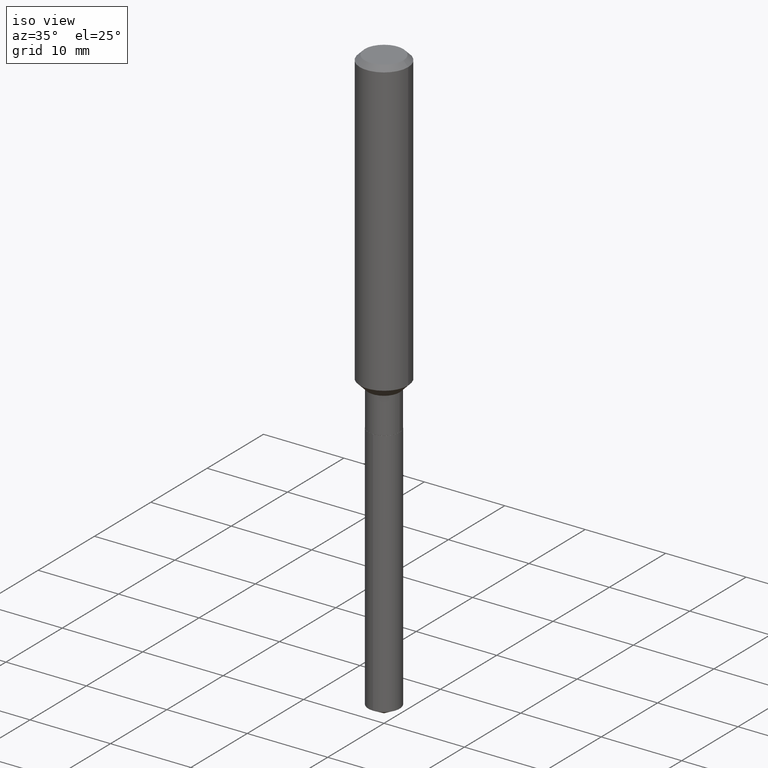
[diagram: clean part render]
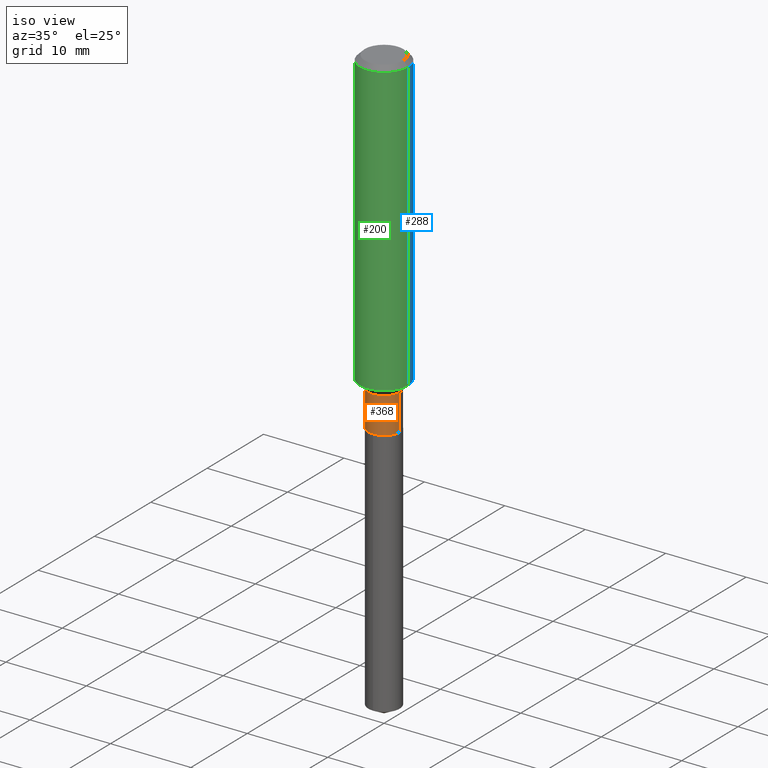
[diagram: same view with three faces highlighted in distinct colors, each labeled with its STEP entity id]
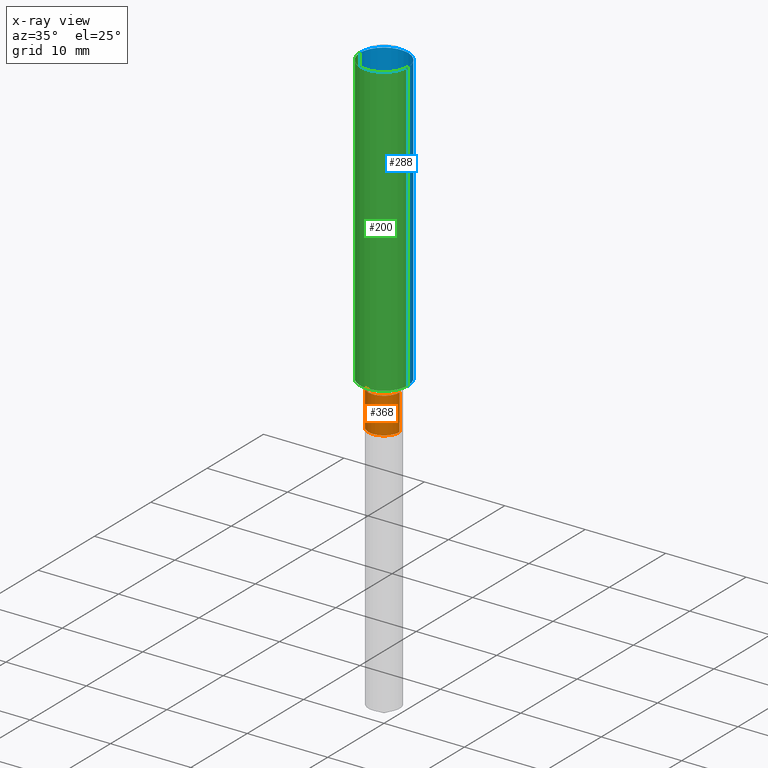
[diagram: x-ray of the same camera — body ghosted, the three highlighted faces saturated]
A machine part, iso view with three faces highlighted in distinct colors.
The next image is the same camera in x-ray (body ghosted, the three faces saturated) — at least one of them is partly hidden behind the body in this view.
Their STEP definitions:

[orange] entity #368 — the highlighted cylindrical surface (edge-blend (fillet) strip) has radius 1.9494 mm, axis along (-0, 0, 1).
#8 = CIRCLE ( 'NONE', #290, 0.07675000000000001266 ) ;
#12 = CARTESIAN_POINT ( 'NONE',  ( -0.07675000000000001266, -4.905209968372158594E-15, -1.649100000000000232 ) ) ;
#15 = ORIENTED_EDGE ( 'NONE', *, *, #80, .T. ) ;
#18 = VECTOR ( 'NONE', #226, 39.37007874015748143 ) ;
#30 = CARTESIAN_POINT ( 'NONE',  ( -0.07674999999999999878, 5.453415496958768840E-16, -3.775282681770640332E-30 ) ) ;
#35 = ORIENTED_EDGE ( 'NONE', *, *, #133, .F. ) ;
#50 = DIRECTION ( 'NONE',  ( -2.445468806185136597E-29, 3.491481338843145583E-15, 1.000000000000000000 ) ) ;
#62 = DIRECTION ( 'NONE',  ( 1.000000000000000000, -6.982962677686265922E-15, 4.876176775795935793E-29 ) ) ;
#74 = DIRECTION ( 'NONE',  ( -2.445468806185136877E-29, 3.491481338843145188E-15, 1.000000000000000000 ) ) ;
#80 = EDGE_CURVE ( 'NONE', #367, #420, #306, .T. ) ;
#100 = FACE_OUTER_BOUND ( 'NONE', #104, .T. ) ;
#104 = EDGE_LOOP ( 'NONE', ( #286, #143, #15, #35 ) ) ;
#115 = CARTESIAN_POINT ( 'NONE',  ( 0.07674999999999999878, -5.359423855124209227E-16, 3.742465675423380805E-30 ) ) ;
#130 = VECTOR ( 'NONE', #74, 39.37007874015748143 ) ;
#133 = EDGE_CURVE ( 'NONE', #350, #420, #243, .T. ) ;
#143 = ORIENTED_EDGE ( 'NONE', *, *, #187, .T. ) ;
#144 = CARTESIAN_POINT ( 'NONE',  ( 0.07675000000000001266, -6.293744261398653157E-15, -1.649100000000000232 ) ) ;
#155 = AXIS2_PLACEMENT_3D ( 'NONE', #322, #248, #246 ) ;
#157 = CARTESIAN_POINT ( 'NONE',  ( 0.07674999999999998490, -5.679243545762258658E-15, -1.473100000000000298 ) ) ;
#187 = EDGE_CURVE ( 'NONE', #225, #367, #8, .T. ) ;
#225 = VERTEX_POINT ( 'NONE', #12 ) ;
#226 = DIRECTION ( 'NONE',  ( -2.445468806185136877E-29, 3.491481338843145188E-15, 1.000000000000000000 ) ) ;
#243 = CIRCLE ( 'NONE', #155, 0.07674999999999998490 ) ;
#245 = EDGE_CURVE ( 'NONE', #225, #350, #266, .T. ) ;
#246 = DIRECTION ( 'NONE',  ( 1.000000000000000000, -6.982962677686261189E-15, 0.000000000000000000 ) ) ;
#248 = DIRECTION ( 'NONE',  ( -2.445468806185136597E-29, 3.491481338843145583E-15, 1.000000000000000000 ) ) ;
#261 = CYLINDRICAL_SURFACE ( 'NONE', #376, 0.07674999999999999878 ) ;
#266 = LINE ( 'NONE', #30, #18 ) ;
#286 = ORIENTED_EDGE ( 'NONE', *, *, #245, .F. ) ;
#290 = AXIS2_PLACEMENT_3D ( 'NONE', #362, #50, #473 ) ;
#292 = DIRECTION ( 'NONE',  ( -2.445468806185136597E-29, 3.491481338843145583E-15, 1.000000000000000000 ) ) ;
#306 = LINE ( 'NONE', #115, #130 ) ;
#322 = CARTESIAN_POINT ( 'NONE',  ( 3.602420098391325292E-29, -5.143301160249838129E-15, -1.473100000000000298 ) ) ;
#331 = CARTESIAN_POINT ( 'NONE',  ( -0.07674999999999998490, -4.905209968372158594E-15, -1.473100000000000298 ) ) ;
#350 = VERTEX_POINT ( 'NONE', #331 ) ;
#362 = CARTESIAN_POINT ( 'NONE',  ( 4.032822608279909015E-29, -5.757801875886231840E-15, -1.649100000000000232 ) ) ;
#367 = VERTEX_POINT ( 'NONE', #144 ) ;
#368 = ADVANCED_FACE ( 'NONE', ( #100 ), #261, .T. ) ;
#376 = AXIS2_PLACEMENT_3D ( 'NONE', #411, #292, #62 ) ;
#411 = CARTESIAN_POINT ( 'NONE',  ( 0.000000000000000000, 0.000000000000000000, 0.000000000000000000 ) ) ;
#420 = VERTEX_POINT ( 'NONE', #157 ) ;
#473 = DIRECTION ( 'NONE',  ( 1.000000000000000000, -6.982962677686271444E-15, 0.000000000000000000 ) ) ;

[blue] entity #288 — the highlighted cylindrical surface (edge-blend (fillet) strip) has radius 2.9997 mm, axis along (-0, 0, 1).
#14 = DIRECTION ( 'NONE',  ( -2.445468806185136597E-29, 3.491481338843145583E-15, 1.000000000000000000 ) ) ;
#26 = EDGE_LOOP ( 'NONE', ( #422, #96, #57, #173 ) ) ;
#27 = FACE_OUTER_BOUND ( 'NONE', #26, .T. ) ;
#32 = EDGE_CURVE ( 'NONE', #476, #213, #265, .T. ) ;
#56 = LINE ( 'NONE', #472, #81 ) ;
#57 = ORIENTED_EDGE ( 'NONE', *, *, #194, .F. ) ;
#81 = VECTOR ( 'NONE', #165, 39.37007874015748143 ) ;
#89 = EDGE_CURVE ( 'NONE', #333, #431, #56, .T. ) ;
#94 = CARTESIAN_POINT ( 'NONE',  ( 5.776197320209328408E-31, -8.246878922347560526E-17, -0.02362000000000014435 ) ) ;
#96 = ORIENTED_EDGE ( 'NONE', *, *, #32, .T. ) ;
#126 = DIRECTION ( 'NONE',  ( -2.445468806185136597E-29, 3.491481338843145583E-15, 1.000000000000000000 ) ) ;
#136 = CARTESIAN_POINT ( 'NONE',  ( 0.1181000000000001632, -5.823616299123422919E-15, -1.431750000000000078 ) ) ;
#139 = CYLINDRICAL_SURFACE ( 'NONE', #304, 0.1181000000000000799 ) ;
#140 = AXIS2_PLACEMENT_3D ( 'NONE', #94, #126, #277 ) ;
#165 = DIRECTION ( 'NONE',  ( -2.445468806185136877E-29, 3.491481338843145188E-15, 1.000000000000000000 ) ) ;
#173 = ORIENTED_EDGE ( 'NONE', *, *, #89, .F. ) ;
#194 = EDGE_CURVE ( 'NONE', #431, #213, #356, .T. ) ;
#204 = CARTESIAN_POINT ( 'NONE',  ( -0.1180999999999999966, -1.701547627123395282E-15, -0.02362000000000014435 ) ) ;
#205 = CARTESIAN_POINT ( 'NONE',  ( 3.501299963255569444E-29, -4.998928406888673868E-15, -1.431750000000000078 ) ) ;
#206 = EDGE_CURVE ( 'NONE', #333, #476, #222, .T. ) ;
#213 = VERTEX_POINT ( 'NONE', #204 ) ;
#220 = DIRECTION ( 'NONE',  ( 1.000000000000000000, -6.982962677686266711E-15, 4.876176775795936353E-29 ) ) ;
#222 = CIRCLE ( 'NONE', #423, 0.1181000000000001632 ) ;
#231 = CARTESIAN_POINT ( 'NONE',  ( -0.1181000000000000799, 8.391509709326788873E-16, -5.809262341591047988E-30 ) ) ;
#265 = LINE ( 'NONE', #231, #300 ) ;
#277 = DIRECTION ( 'NONE',  ( 1.000000000000000000, -6.982962677686266711E-15, 0.000000000000000000 ) ) ;
#288 = ADVANCED_FACE ( 'NONE', ( #27 ), #139, .T. ) ;
#300 = VECTOR ( 'NONE', #417, 39.37007874015748143 ) ;
#304 = AXIS2_PLACEMENT_3D ( 'NONE', #451, #371, #220 ) ;
#333 = VERTEX_POINT ( 'NONE', #136 ) ;
#356 = CIRCLE ( 'NONE', #140, 0.1180999999999999966 ) ;
#371 = DIRECTION ( 'NONE',  ( -2.445468806185136597E-29, 3.491481338843145583E-15, 1.000000000000000000 ) ) ;
#389 = CARTESIAN_POINT ( 'NONE',  ( -0.1181000000000001632, -4.159777435955994882E-15, -1.431750000000000078 ) ) ;
#417 = DIRECTION ( 'NONE',  ( -2.445468806185136877E-29, 3.491481338843145188E-15, 1.000000000000000000 ) ) ;
#422 = ORIENTED_EDGE ( 'NONE', *, *, #206, .T. ) ;
#423 = AXIS2_PLACEMENT_3D ( 'NONE', #205, #14, #440 ) ;
#431 = VERTEX_POINT ( 'NONE', #462 ) ;
#440 = DIRECTION ( 'NONE',  ( 1.000000000000000000, -6.982962677686263555E-15, 0.000000000000000000 ) ) ;
#451 = CARTESIAN_POINT ( 'NONE',  ( 0.000000000000000000, 0.000000000000000000, 0.000000000000000000 ) ) ;
#462 = CARTESIAN_POINT ( 'NONE',  ( 0.1180999999999999966, -9.071566814582237199E-16, -0.02362000000000014435 ) ) ;
#472 = CARTESIAN_POINT ( 'NONE',  ( 0.1181000000000000799, -8.246878922347486570E-16, 5.758764772215004644E-30 ) ) ;
#476 = VERTEX_POINT ( 'NONE', #389 ) ;

[green] entity #200 — the highlighted cylindrical surface (edge-blend (fillet) strip) has radius 2.9997 mm, axis along (-0, 0, 1).
#9 = DIRECTION ( 'NONE',  ( -2.445468806185136597E-29, 3.491481338843145583E-15, 1.000000000000000000 ) ) ;
#32 = EDGE_CURVE ( 'NONE', #476, #213, #265, .T. ) ;
#52 = FACE_OUTER_BOUND ( 'NONE', #239, .T. ) ;
#56 = LINE ( 'NONE', #472, #81 ) ;
#64 = DIRECTION ( 'NONE',  ( -2.445468806185136597E-29, 3.491481338843145583E-15, 1.000000000000000000 ) ) ;
#81 = VECTOR ( 'NONE', #165, 39.37007874015748143 ) ;
#89 = EDGE_CURVE ( 'NONE', #333, #431, #56, .T. ) ;
#112 = ORIENTED_EDGE ( 'NONE', *, *, #32, .F. ) ;
#136 = CARTESIAN_POINT ( 'NONE',  ( 0.1181000000000001632, -5.823616299123422919E-15, -1.431750000000000078 ) ) ;
#165 = DIRECTION ( 'NONE',  ( -2.445468806185136877E-29, 3.491481338843145188E-15, 1.000000000000000000 ) ) ;
#190 = AXIS2_PLACEMENT_3D ( 'NONE', #217, #64, #377 ) ;
#200 = ADVANCED_FACE ( 'NONE', ( #52 ), #201, .T. ) ;
#201 = CYLINDRICAL_SURFACE ( 'NONE', #202, 0.1181000000000000799 ) ;
#202 = AXIS2_PLACEMENT_3D ( 'NONE', #355, #9, #242 ) ;
#204 = CARTESIAN_POINT ( 'NONE',  ( -0.1180999999999999966, -1.701547627123395282E-15, -0.02362000000000014435 ) ) ;
#213 = VERTEX_POINT ( 'NONE', #204 ) ;
#217 = CARTESIAN_POINT ( 'NONE',  ( 5.776197320209328408E-31, -8.246878922347560526E-17, -0.02362000000000014435 ) ) ;
#231 = CARTESIAN_POINT ( 'NONE',  ( -0.1181000000000000799, 8.391509709326788873E-16, -5.809262341591047988E-30 ) ) ;
#239 = EDGE_LOOP ( 'NONE', ( #112, #305, #374, #258 ) ) ;
#242 = DIRECTION ( 'NONE',  ( 1.000000000000000000, -6.982962677686266711E-15, 4.876176775795936353E-29 ) ) ;
#258 = ORIENTED_EDGE ( 'NONE', *, *, #372, .F. ) ;
#265 = LINE ( 'NONE', #231, #300 ) ;
#271 = CARTESIAN_POINT ( 'NONE',  ( 3.501299963255569444E-29, -4.998928406888673868E-15, -1.431750000000000078 ) ) ;
#300 = VECTOR ( 'NONE', #417, 39.37007874015748143 ) ;
#305 = ORIENTED_EDGE ( 'NONE', *, *, #487, .T. ) ;
#333 = VERTEX_POINT ( 'NONE', #136 ) ;
#355 = CARTESIAN_POINT ( 'NONE',  ( 0.000000000000000000, 0.000000000000000000, 0.000000000000000000 ) ) ;
#372 = EDGE_CURVE ( 'NONE', #213, #431, #432, .T. ) ;
#374 = ORIENTED_EDGE ( 'NONE', *, *, #89, .T. ) ;
#377 = DIRECTION ( 'NONE',  ( 1.000000000000000000, -6.982962677686266711E-15, 0.000000000000000000 ) ) ;
#389 = CARTESIAN_POINT ( 'NONE',  ( -0.1181000000000001632, -4.159777435955994882E-15, -1.431750000000000078 ) ) ;
#391 = AXIS2_PLACEMENT_3D ( 'NONE', #271, #392, #421 ) ;
#392 = DIRECTION ( 'NONE',  ( -2.445468806185136597E-29, 3.491481338843145583E-15, 1.000000000000000000 ) ) ;
#405 = CIRCLE ( 'NONE', #391, 0.1181000000000001632 ) ;
#417 = DIRECTION ( 'NONE',  ( -2.445468806185136877E-29, 3.491481338843145188E-15, 1.000000000000000000 ) ) ;
#421 = DIRECTION ( 'NONE',  ( 1.000000000000000000, -6.982962677686263555E-15, 0.000000000000000000 ) ) ;
#431 = VERTEX_POINT ( 'NONE', #462 ) ;
#432 = CIRCLE ( 'NONE', #190, 0.1180999999999999966 ) ;
#462 = CARTESIAN_POINT ( 'NONE',  ( 0.1180999999999999966, -9.071566814582237199E-16, -0.02362000000000014435 ) ) ;
#472 = CARTESIAN_POINT ( 'NONE',  ( 0.1181000000000000799, -8.246878922347486570E-16, 5.758764772215004644E-30 ) ) ;
#476 = VERTEX_POINT ( 'NONE', #389 ) ;
#487 = EDGE_CURVE ( 'NONE', #476, #333, #405, .T. ) ;